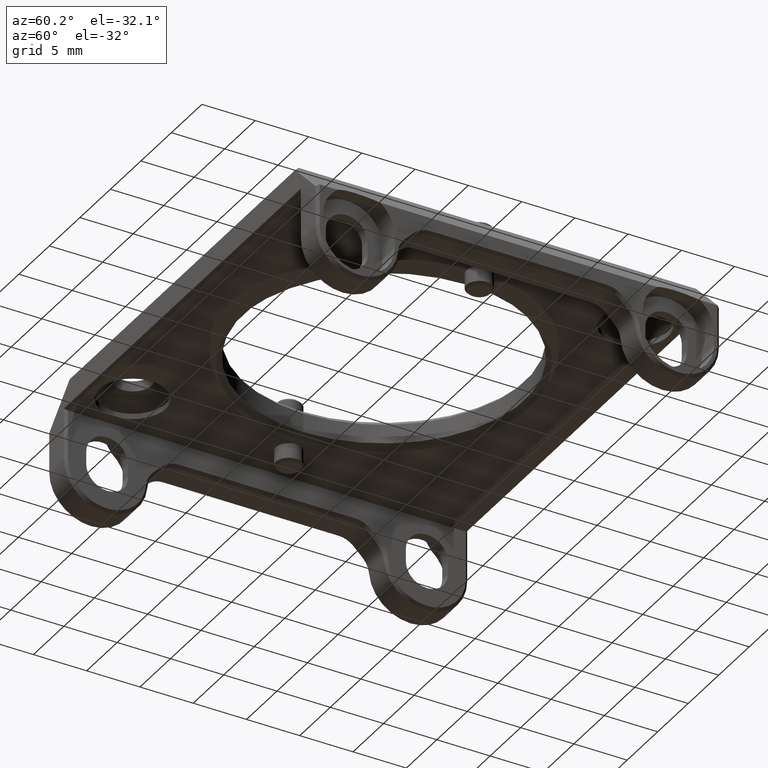
[diagram: clean part render]
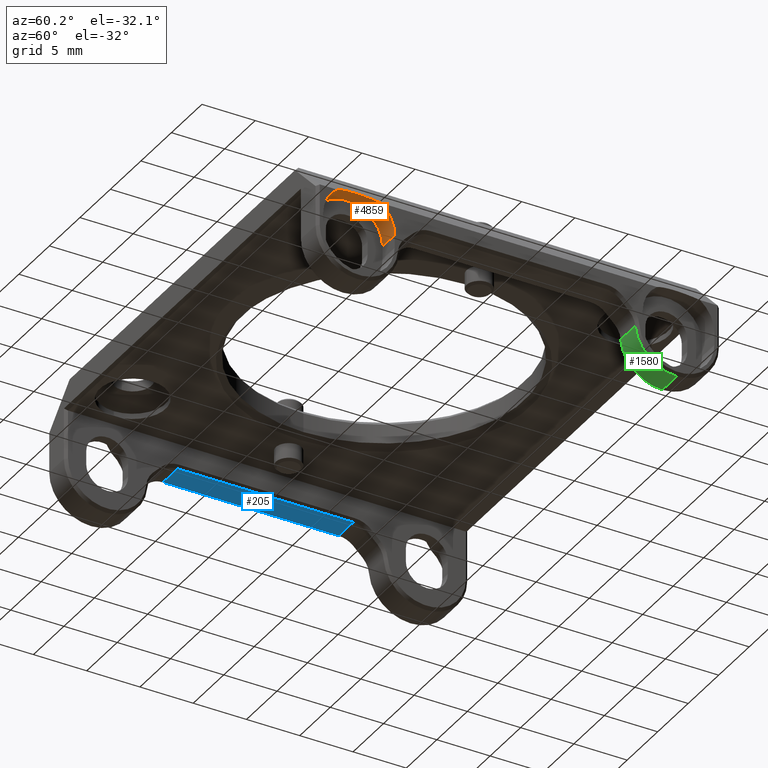
[diagram: same view with three faces highlighted in distinct colors, each labeled with its STEP entity id]
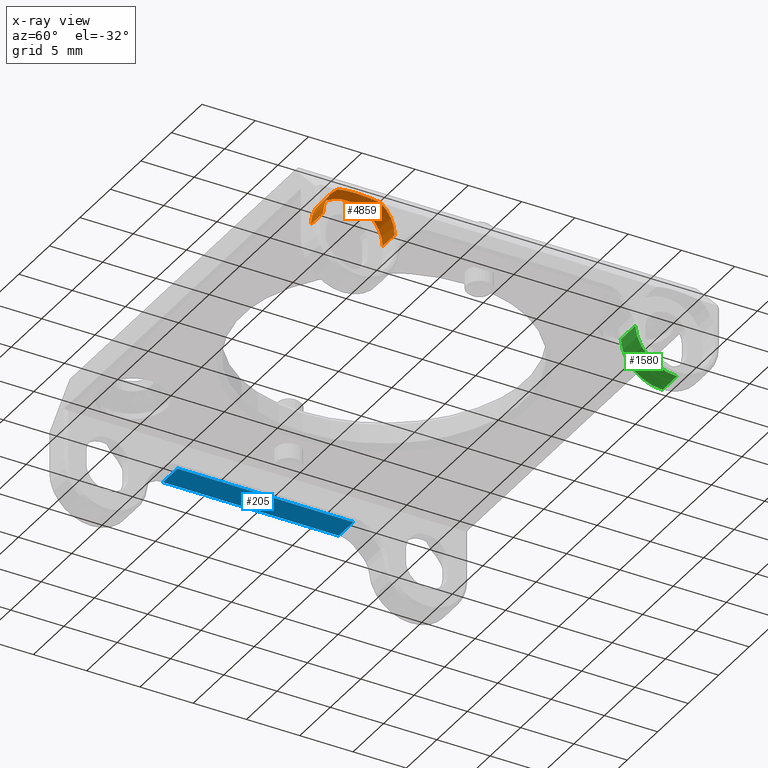
[diagram: x-ray of the same camera — body ghosted, the three highlighted faces saturated]
A machine part, auxiliary view with three faces highlighted in distinct colors.
The next image is the same camera in x-ray (body ghosted, the three faces saturated) — at least one of them is partly hidden behind the body in this view.
Their STEP definitions:

[orange] entity #4859 — the highlighted cylindrical surface (partial cylindrical patch) has radius 3.365 mm, axis along (1, -0, 0).
#761 = CARTESIAN_POINT ( 'NONE',  ( 20.07499999999999574, -18.36499999999999844, -3.394999999999992912 ) ) ;
#855 = DIRECTION ( 'NONE',  ( 0.000000000000000000, 0.000000000000000000, 1.000000000000000000 ) ) ;
#1081 = ORIENTED_EDGE ( 'NONE', *, *, #2939, .T. ) ;
#1569 = CIRCLE ( 'NONE', #1723, 3.364999999999999769 ) ;
#1723 = AXIS2_PLACEMENT_3D ( 'NONE', #2828, #3407, #4562 ) ;
#1978 = LINE ( 'NONE', #3716, #6197 ) ;
#2028 = DIRECTION ( 'NONE',  ( 1.000000000000000000, -0.000000000000000000, 3.016910393003141873E-16 ) ) ;
#2262 = VERTEX_POINT ( 'NONE', #4509 ) ;
#2274 = DIRECTION ( 'NONE',  ( 0.000000000000000000, 0.000000000000000000, -1.000000000000000000 ) ) ;
#2278 = VERTEX_POINT ( 'NONE', #7425 ) ;
#2289 = EDGE_LOOP ( 'NONE', ( #3853, #5575, #1081, #3430, #5133, #5688 ) ) ;
#2303 = DIRECTION ( 'NONE',  ( 1.000000000000000000, -0.000000000000000000, 3.016910393003141873E-16 ) ) ;
#2357 = CARTESIAN_POINT ( 'NONE',  ( 20.07499999999999574, -15.00000000000000000, -3.394999999999992912 ) ) ;
#2700 = CARTESIAN_POINT ( 'NONE',  ( 22.07499999999999929, -12.97170021939561124, -0.7099999999999572209 ) ) ;
#2828 = CARTESIAN_POINT ( 'NONE',  ( 22.07499999999999574, -15.00000000000000000, -3.394999999999992468 ) ) ;
#2868 = VERTEX_POINT ( 'NONE', #761 ) ;
#2939 = EDGE_CURVE ( 'NONE', #2278, #2262, #4940, .T. ) ;
#3021 = CIRCLE ( 'NONE', #6083, 3.364999999999999769 ) ;
#3126 = AXIS2_PLACEMENT_3D ( 'NONE', #3645, #4241, #855 ) ;
#3173 = EDGE_CURVE ( 'NONE', #6423, #2868, #3021, .T. ) ;
#3221 = EDGE_CURVE ( 'NONE', #6423, #3421, #5834, .T. ) ;
#3407 = DIRECTION ( 'NONE',  ( 1.000000000000000000, 0.000000000000000000, 3.016910393003141873E-16 ) ) ;
#3421 = VERTEX_POINT ( 'NONE', #4907 ) ;
#3430 = ORIENTED_EDGE ( 'NONE', *, *, #5471, .F. ) ;
#3559 = VECTOR ( 'NONE', #4136, 1000.000000000000000 ) ;
#3645 = CARTESIAN_POINT ( 'NONE',  ( 22.07499999999999574, -15.00000000000000000, -3.394999999999992468 ) ) ;
#3716 = CARTESIAN_POINT ( 'NONE',  ( 20.07499999999999574, -18.36499999999999844, -3.394999999999992912 ) ) ;
#3767 = EDGE_CURVE ( 'NONE', #4781, #2278, #5336, .T. ) ;
#3853 = ORIENTED_EDGE ( 'NONE', *, *, #3968, .T. ) ;
#3968 = EDGE_CURVE ( 'NONE', #3421, #4781, #1569, .T. ) ;
#3983 = CARTESIAN_POINT ( 'NONE',  ( 20.07499999999999574, -15.00000000000000000, -3.394999999999992912 ) ) ;
#4136 = DIRECTION ( 'NONE',  ( 1.000000000000000000, -0.000000000000000000, 3.016910393003141873E-16 ) ) ;
#4241 = DIRECTION ( 'NONE',  ( 1.000000000000000000, 0.000000000000000000, 3.016910393003141873E-16 ) ) ;
#4509 = CARTESIAN_POINT ( 'NONE',  ( 22.07499999999999929, -18.36500000000000199, -3.394999999999991580 ) ) ;
#4562 = DIRECTION ( 'NONE',  ( 0.000000000000000000, 0.000000000000000000, 1.000000000000000000 ) ) ;
#4781 = VERTEX_POINT ( 'NONE', #2700 ) ;
#4856 = CARTESIAN_POINT ( 'NONE',  ( 22.07499999999999574, -17.02829978060438521, -0.7099999999999528910 ) ) ;
#4859 = ADVANCED_FACE ( 'NONE', ( #7378 ), #4958, .F. ) ;
#4907 = CARTESIAN_POINT ( 'NONE',  ( 22.07499999999999574, -11.63499999999999979, -3.394999999999992468 ) ) ;
#4940 = CIRCLE ( 'NONE', #3126, 3.364999999999999769 ) ;
#4958 = CYLINDRICAL_SURFACE ( 'NONE', #6291, 3.365000000000000213 ) ;
#5133 = ORIENTED_EDGE ( 'NONE', *, *, #3173, .F. ) ;
#5319 = DIRECTION ( 'NONE',  ( 1.000000000000000000, 0.000000000000000000, 3.016910393003141873E-16 ) ) ;
#5336 =( BOUNDED_CURVE ( )  B_SPLINE_CURVE ( 3, ( #7013, #5850, #6041, #4856 ),
 .UNSPECIFIED., .F., .T. ) 
 B_SPLINE_CURVE_WITH_KNOTS ( ( 4, 4 ),
 ( 2.494632451870536283, 3.788552855309048617 ),
 .UNSPECIFIED. ) 
 CURVE ( )  GEOMETRIC_REPRESENTATION_ITEM ( )  RATIONAL_B_SPLINE_CURVE ( ( 1.000000000000000000, 0.8652798415057034731, 0.8652798415057034731, 1.000000000000000000 ) ) 
 REPRESENTATION_ITEM ( '' )  );
#5471 = EDGE_CURVE ( 'NONE', #2868, #2262, #1978, .T. ) ;
#5575 = ORIENTED_EDGE ( 'NONE', *, *, #3767, .T. ) ;
#5688 = ORIENTED_EDGE ( 'NONE', *, *, #3221, .T. ) ;
#5834 = LINE ( 'NONE', #6969, #3559 ) ;
#5850 = CARTESIAN_POINT ( 'NONE',  ( 21.13304235832860911, -14.21863437186791934, 0.2319576416714259348 ) ) ;
#6041 = CARTESIAN_POINT ( 'NONE',  ( 21.13304235832860911, -15.78136562813207178, 0.2319576416714266842 ) ) ;
#6083 = AXIS2_PLACEMENT_3D ( 'NONE', #2357, #5319, #6379 ) ;
#6197 = VECTOR ( 'NONE', #2028, 1000.000000000000000 ) ;
#6291 = AXIS2_PLACEMENT_3D ( 'NONE', #3983, #2303, #2274 ) ;
#6379 = DIRECTION ( 'NONE',  ( 0.000000000000000000, 0.000000000000000000, 1.000000000000000000 ) ) ;
#6423 = VERTEX_POINT ( 'NONE', #6707 ) ;
#6707 = CARTESIAN_POINT ( 'NONE',  ( 20.07499999999999574, -11.63499999999999979, -3.394999999999992912 ) ) ;
#6969 = CARTESIAN_POINT ( 'NONE',  ( 20.07499999999999574, -11.63499999999999979, -3.394999999999992912 ) ) ;
#7013 = CARTESIAN_POINT ( 'NONE',  ( 22.07499999999999929, -12.97170021939561124, -0.7099999999999572209 ) ) ;
#7378 = FACE_OUTER_BOUND ( 'NONE', #2289, .T. ) ;
#7425 = CARTESIAN_POINT ( 'NONE',  ( 22.07499999999999574, -17.02829978060438521, -0.7099999999999528910 ) ) ;

[blue] entity #205 — the highlighted planar face has unit normal (-0, 0, 1).
#205 = ADVANCED_FACE ( 'NONE', ( #4443 ), #5311, .F. ) ;
#432 = VECTOR ( 'NONE', #2441, 1000.000000000000000 ) ;
#512 = CARTESIAN_POINT ( 'NONE',  ( -19.42499999999999361, 11.07499999999999751, -2.210000000000007958 ) ) ;
#861 = EDGE_CURVE ( 'NONE', #5392, #3690, #6493, .T. ) ;
#975 = LINE ( 'NONE', #7130, #4824 ) ;
#1116 = ORIENTED_EDGE ( 'NONE', *, *, #861, .T. ) ;
#1835 = VECTOR ( 'NONE', #5055, 1000.000000000000000 ) ;
#1920 = VERTEX_POINT ( 'NONE', #7103 ) ;
#2042 = LINE ( 'NONE', #5919, #432 ) ;
#2231 = EDGE_CURVE ( 'NONE', #7415, #5392, #4305, .T. ) ;
#2232 = CARTESIAN_POINT ( 'NONE',  ( -21.82499999999999929, 8.246572875253789903, -2.210000000000008846 ) ) ;
#2441 = DIRECTION ( 'NONE',  ( 0.000000000000000000, 1.000000000000000000, -0.000000000000000000 ) ) ;
#2847 = CARTESIAN_POINT ( 'NONE',  ( -19.17500000000000071, 8.246572875253789903, -2.210000000000007958 ) ) ;
#3064 = CARTESIAN_POINT ( 'NONE',  ( -19.42499999999999361, 8.246572875253789903, -2.210000000000007958 ) ) ;
#3319 = VECTOR ( 'NONE', #3993, 1000.000000000000000 ) ;
#3621 = DIRECTION ( 'NONE',  ( 1.000000000000000000, 0.000000000000000000, 3.016910393003141873E-16 ) ) ;
#3690 = VERTEX_POINT ( 'NONE', #4006 ) ;
#3993 = DIRECTION ( 'NONE',  ( 1.000000000000000000, -0.000000000000000000, 3.016910393003141873E-16 ) ) ;
#4006 = CARTESIAN_POINT ( 'NONE',  ( -19.42499999999999361, -8.246572875253818324, -2.210000000000007958 ) ) ;
#4054 = CARTESIAN_POINT ( 'NONE',  ( -22.07500000000000284, 11.07499999999999751, -2.210000000000008846 ) ) ;
#4305 = LINE ( 'NONE', #2847, #3319 ) ;
#4397 = AXIS2_PLACEMENT_3D ( 'NONE', #4054, #5441, #3621 ) ;
#4443 = FACE_OUTER_BOUND ( 'NONE', #4678, .T. ) ;
#4634 = ORIENTED_EDGE ( 'NONE', *, *, #2231, .T. ) ;
#4678 = EDGE_LOOP ( 'NONE', ( #7258, #6994, #4634, #1116 ) ) ;
#4824 = VECTOR ( 'NONE', #6550, 1000.000000000000000 ) ;
#5055 = DIRECTION ( 'NONE',  ( 0.000000000000000000, -1.000000000000000000, 0.000000000000000000 ) ) ;
#5311 = PLANE ( 'NONE',  #4397 ) ;
#5392 = VERTEX_POINT ( 'NONE', #3064 ) ;
#5441 = DIRECTION ( 'NONE',  ( -3.016910393003141873E-16, 0.000000000000000000, 1.000000000000000000 ) ) ;
#5860 = EDGE_CURVE ( 'NONE', #1920, #7415, #2042, .T. ) ;
#5919 = CARTESIAN_POINT ( 'NONE',  ( -21.82499999999999574, 11.07499999999999751, -2.210000000000008846 ) ) ;
#6493 = LINE ( 'NONE', #512, #1835 ) ;
#6550 = DIRECTION ( 'NONE',  ( -1.000000000000000000, 1.021115268026418487E-32, -3.016910393003141873E-16 ) ) ;
#6592 = EDGE_CURVE ( 'NONE', #3690, #1920, #975, .T. ) ;
#6994 = ORIENTED_EDGE ( 'NONE', *, *, #5860, .T. ) ;
#7103 = CARTESIAN_POINT ( 'NONE',  ( -21.82499999999999574, -8.246572875253818324, -2.210000000000008846 ) ) ;
#7130 = CARTESIAN_POINT ( 'NONE',  ( -22.07500000000000284, -8.246572875253818324, -2.210000000000008846 ) ) ;
#7258 = ORIENTED_EDGE ( 'NONE', *, *, #6592, .T. ) ;
#7415 = VERTEX_POINT ( 'NONE', #2232 ) ;

[green] entity #1580 — the highlighted cylindrical surface (partial cylindrical patch) has radius 3.925 mm, axis along (1, -0, -0).
#39 = VERTEX_POINT ( 'NONE', #6514 ) ;
#264 = CARTESIAN_POINT ( 'NONE',  ( 21.82499999999999574, 14.99999999999999645, -4.604999999999992433 ) ) ;
#486 = CARTESIAN_POINT ( 'NONE',  ( 19.42500000000000426, 14.99999999999999645, -4.604999999999992433 ) ) ;
#712 = EDGE_CURVE ( 'NONE', #6642, #3183, #5892, .T. ) ;
#865 = CIRCLE ( 'NONE', #4868, 3.925000000000001599 ) ;
#893 = DIRECTION ( 'NONE',  ( 0.000000000000000000, 0.000000000000000000, 1.000000000000000000 ) ) ;
#1008 = LINE ( 'NONE', #2592, #1522 ) ;
#1290 = EDGE_LOOP ( 'NONE', ( #5081, #5933, #4653, #1627 ) ) ;
#1361 = FACE_OUTER_BOUND ( 'NONE', #1290, .T. ) ;
#1522 = VECTOR ( 'NONE', #4901, 1000.000000000000000 ) ;
#1580 = ADVANCED_FACE ( 'NONE', ( #1361 ), #1612, .T. ) ;
#1612 = CYLINDRICAL_SURFACE ( 'NONE', #5842, 3.925000000000001599 ) ;
#1627 = ORIENTED_EDGE ( 'NONE', *, *, #6092, .T. ) ;
#2507 = CARTESIAN_POINT ( 'NONE',  ( -22.07500000000000284, 14.99999999999999645, -4.604999999999992433 ) ) ;
#2592 = CARTESIAN_POINT ( 'NONE',  ( -22.07500000000000284, 11.08636621248024490, -4.903488822544190384 ) ) ;
#2648 = CARTESIAN_POINT ( 'NONE',  ( 19.42500000000000426, 14.99999999999999645, -8.529999999999994031 ) ) ;
#2699 = CARTESIAN_POINT ( 'NONE',  ( -22.07500000000000284, 14.99999999999999645, -8.529999999999994031 ) ) ;
#3183 = VERTEX_POINT ( 'NONE', #6425 ) ;
#3362 = EDGE_CURVE ( 'NONE', #6215, #6642, #7150, .T. ) ;
#3709 = CARTESIAN_POINT ( 'NONE',  ( 21.82499999999999574, 14.99999999999999645, -8.529999999999994031 ) ) ;
#3801 = DIRECTION ( 'NONE',  ( 1.000000000000000000, -0.000000000000000000, -0.000000000000000000 ) ) ;
#3882 = DIRECTION ( 'NONE',  ( 0.000000000000000000, 0.000000000000000000, -1.000000000000000000 ) ) ;
#4223 = DIRECTION ( 'NONE',  ( 0.000000000000000000, 0.000000000000000000, -1.000000000000000000 ) ) ;
#4308 = DIRECTION ( 'NONE',  ( -1.000000000000000000, -0.000000000000000000, -0.000000000000000000 ) ) ;
#4653 = ORIENTED_EDGE ( 'NONE', *, *, #712, .T. ) ;
#4680 = DIRECTION ( 'NONE',  ( 1.000000000000000000, -0.000000000000000000, -0.000000000000000000 ) ) ;
#4868 = AXIS2_PLACEMENT_3D ( 'NONE', #486, #5142, #3882 ) ;
#4901 = DIRECTION ( 'NONE',  ( -1.000000000000000000, 0.000000000000000000, 0.000000000000000000 ) ) ;
#5012 = VECTOR ( 'NONE', #3801, 1000.000000000000000 ) ;
#5081 = ORIENTED_EDGE ( 'NONE', *, *, #7372, .T. ) ;
#5142 = DIRECTION ( 'NONE',  ( 1.000000000000000000, 0.000000000000000000, 0.000000000000000000 ) ) ;
#5842 = AXIS2_PLACEMENT_3D ( 'NONE', #2507, #4680, #4223 ) ;
#5892 = CIRCLE ( 'NONE', #6661, 3.925000000000001599 ) ;
#5933 = ORIENTED_EDGE ( 'NONE', *, *, #3362, .T. ) ;
#6092 = EDGE_CURVE ( 'NONE', #3183, #39, #1008, .T. ) ;
#6215 = VERTEX_POINT ( 'NONE', #2648 ) ;
#6425 = CARTESIAN_POINT ( 'NONE',  ( 21.82499999999999574, 11.08636621248024490, -4.903488822544190384 ) ) ;
#6514 = CARTESIAN_POINT ( 'NONE',  ( 19.42500000000000426, 11.08636621248024490, -4.903488822544190384 ) ) ;
#6642 = VERTEX_POINT ( 'NONE', #3709 ) ;
#6661 = AXIS2_PLACEMENT_3D ( 'NONE', #264, #4308, #893 ) ;
#7150 = LINE ( 'NONE', #2699, #5012 ) ;
#7372 = EDGE_CURVE ( 'NONE', #39, #6215, #865, .T. ) ;